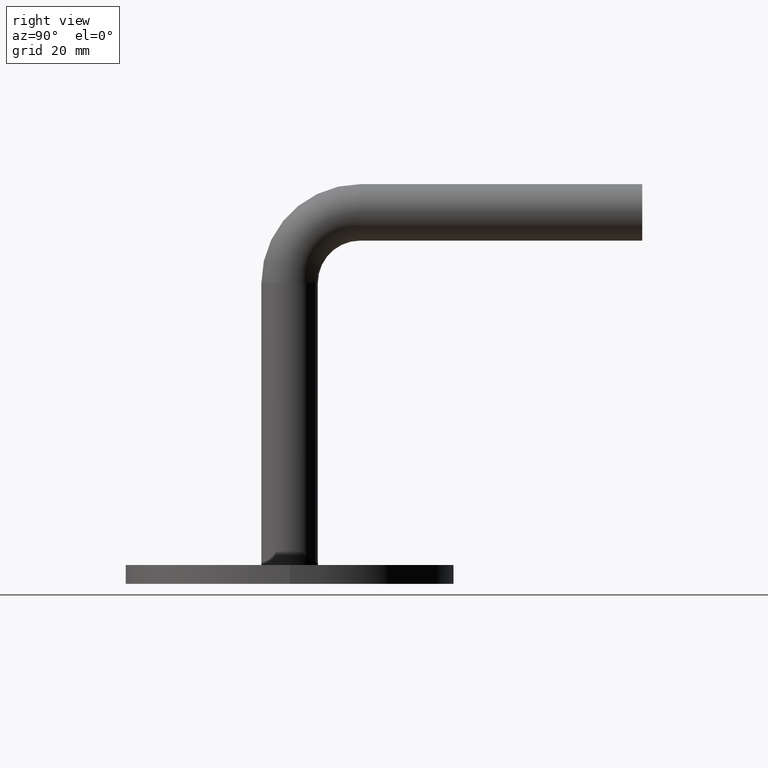
[diagram: clean part render]
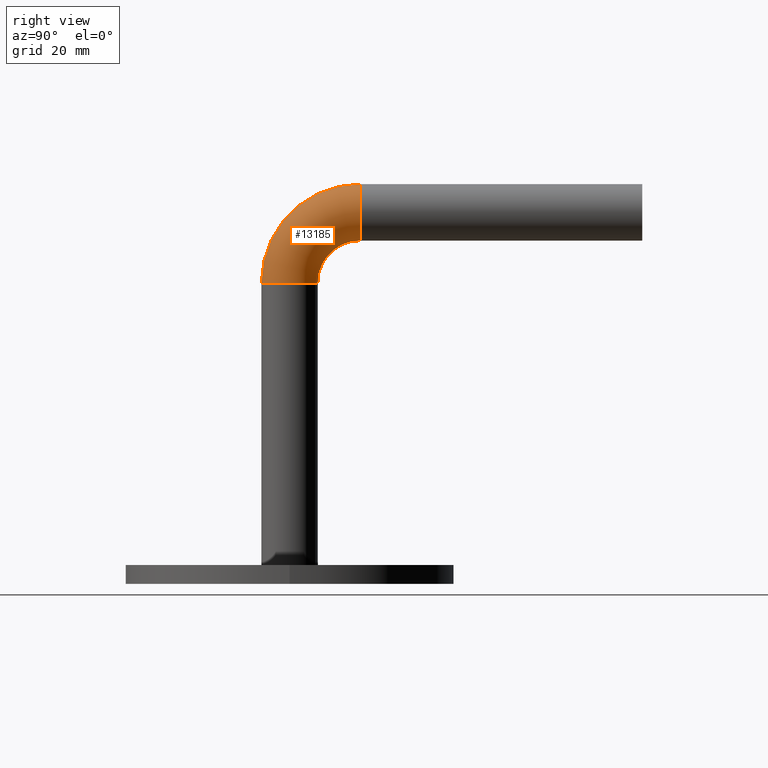
[diagram: same view with one face highlighted and labeled with its STEP entity id]
A machine part, right view. The second image highlights one B-rep face of the part: STEP entity #13185.
In plain terms, the highlighted toroidal blend (fillet) surface has major radius 15 mm and minor (blend) radius 6 mm.
Its self-contained STEP definition (entity closure, byte-faithful):
#111 = AXIS2_PLACEMENT_3D ( 'NONE', #6358, #9209, #740 ) ;
#562 = VERTEX_POINT ( 'NONE', #17720 ) ;
#668 = CIRCLE ( 'NONE', #11078, 21.00000000000000355 ) ;
#698 = AXIS2_PLACEMENT_3D ( 'NONE', #14168, #9946, #14222 ) ;
#740 = DIRECTION ( 'NONE',  ( 0.000000000000000000, 0.000000000000000000, 1.000000000000000000 ) ) ;
#800 = CARTESIAN_POINT ( 'NONE',  ( 0.000000000000000000, -6.938893903907228378E-15, 60.00000000000000000 ) ) ;
#1267 = CIRCLE ( 'NONE', #698, 6.000000000000000888 ) ;
#2136 = CARTESIAN_POINT ( 'NONE',  ( 0.000000000000000000, 14.99999999999999289, 60.00000000000000000 ) ) ;
#3136 = ORIENTED_EDGE ( 'NONE', *, *, #5627, .T. ) ;
#3304 = CIRCLE ( 'NONE', #14829, 6.000000000000000888 ) ;
#3751 = DIRECTION ( 'NONE',  ( 0.000000000000000000, 0.000000000000000000, 1.000000000000000000 ) ) ;
#5536 = CARTESIAN_POINT ( 'NONE',  ( 0.000000000000000000, 5.999999999999993783, 60.00000000000000000 ) ) ;
#5596 = ORIENTED_EDGE ( 'NONE', *, *, #11077, .F. ) ;
#5627 = EDGE_CURVE ( 'NONE', #11234, #8886, #3304, .T. ) ;
#6358 = CARTESIAN_POINT ( 'NONE',  ( 7.347880794884120722E-16, 14.99999999999999289, 60.00000000000000000 ) ) ;
#6464 = DIRECTION ( 'NONE',  ( 1.000000000000000000, 0.000000000000000000, 0.000000000000000000 ) ) ;
#7037 = TOROIDAL_SURFACE ( 'NONE', #9308, 15.00000000000000000, 6.000000000000000888 ) ;
#7887 = DIRECTION ( 'NONE',  ( 0.000000000000000000, 0.000000000000000000, 1.000000000000000000 ) ) ;
#8083 = EDGE_LOOP ( 'NONE', ( #5596, #3136, #17788, #16866 ) ) ;
#8131 = CARTESIAN_POINT ( 'NONE',  ( 7.347880794884124666E-16, -6.000000000000008882, 60.00000000000000000 ) ) ;
#8886 = VERTEX_POINT ( 'NONE', #5536 ) ;
#8918 = CARTESIAN_POINT ( 'NONE',  ( 0.000000000000000000, 14.99999999999999289, 81.00000000000000000 ) ) ;
#9209 = DIRECTION ( 'NONE',  ( -1.000000000000000000, -0.000000000000000000, 0.000000000000000000 ) ) ;
#9308 = AXIS2_PLACEMENT_3D ( 'NONE', #2136, #10744, #3751 ) ;
#9365 = DIRECTION ( 'NONE',  ( -1.000000000000000000, -0.000000000000000000, 0.000000000000000000 ) ) ;
#9946 = DIRECTION ( 'NONE',  ( 0.000000000000000000, 1.000000000000000000, 6.123233995736766036E-17 ) ) ;
#10744 = DIRECTION ( 'NONE',  ( -1.000000000000000000, -0.000000000000000000, 0.000000000000000000 ) ) ;
#11077 = EDGE_CURVE ( 'NONE', #11234, #13475, #668, .T. ) ;
#11078 = AXIS2_PLACEMENT_3D ( 'NONE', #18006, #9365, #7887 ) ;
#11234 = VERTEX_POINT ( 'NONE', #8131 ) ;
#13185 = ADVANCED_FACE ( 'NONE', ( #18365 ), #7037, .T. ) ;
#13475 = VERTEX_POINT ( 'NONE', #8918 ) ;
#14168 = CARTESIAN_POINT ( 'NONE',  ( 0.000000000000000000, 14.99999999999999289, 75.00000000000000000 ) ) ;
#14222 = DIRECTION ( 'NONE',  ( 1.000000000000000000, 0.000000000000000000, 0.000000000000000000 ) ) ;
#14521 = CIRCLE ( 'NONE', #111, 8.999999999999994671 ) ;
#14829 = AXIS2_PLACEMENT_3D ( 'NONE', #800, #14980, #6464 ) ;
#14980 = DIRECTION ( 'NONE',  ( 0.000000000000000000, 0.000000000000000000, 1.000000000000000000 ) ) ;
#16866 = ORIENTED_EDGE ( 'NONE', *, *, #17514, .F. ) ;
#17514 = EDGE_CURVE ( 'NONE', #13475, #562, #1267, .T. ) ;
#17720 = CARTESIAN_POINT ( 'NONE',  ( 7.347880794884113820E-16, 14.99999999999999289, 68.99999999999998579 ) ) ;
#17788 = ORIENTED_EDGE ( 'NONE', *, *, #18125, .T. ) ;
#18006 = CARTESIAN_POINT ( 'NONE',  ( 0.000000000000000000, 14.99999999999999289, 60.00000000000000000 ) ) ;
#18125 = EDGE_CURVE ( 'NONE', #8886, #562, #14521, .T. ) ;
#18365 = FACE_OUTER_BOUND ( 'NONE', #8083, .T. ) ;